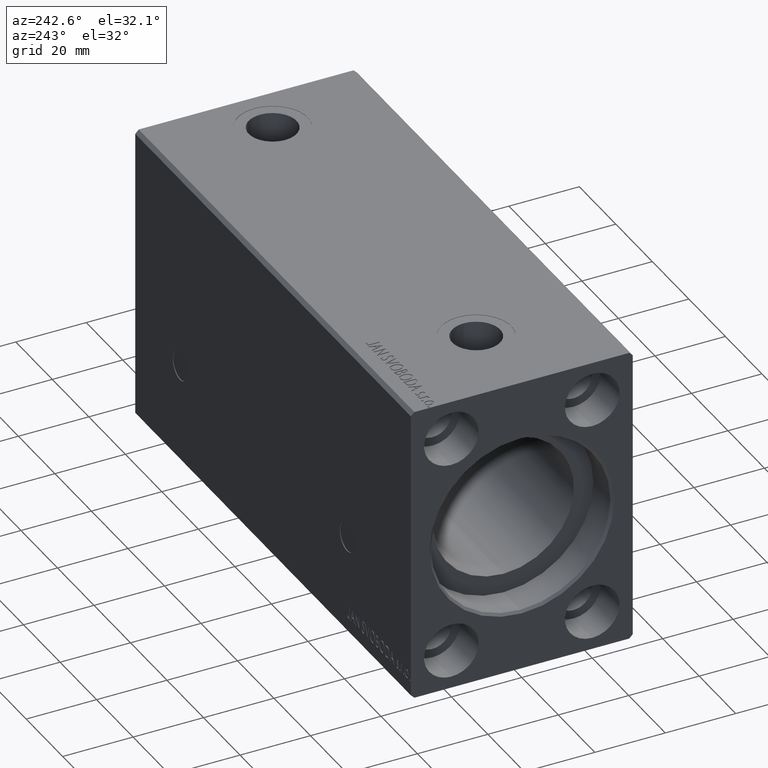
[diagram: clean part render]
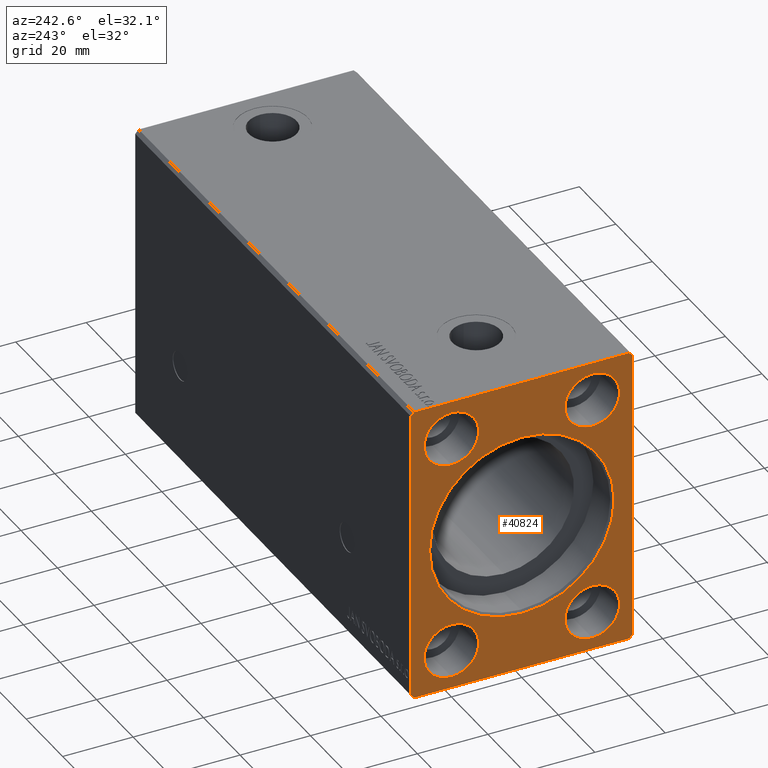
[diagram: same view with one face highlighted and labeled with its STEP entity id]
A machine part, auxiliary view. The second image highlights one B-rep face of the part: STEP entity #40824.
In plain terms, the highlighted planar face has unit normal (1, 0, 0).
Its self-contained STEP definition (entity closure, byte-faithful):
#201 = VECTOR ( 'NONE', #4787, 1000.000000000000114 ) ;
#292 = CARTESIAN_POINT ( 'NONE',  ( 0.000000000000000000, -19.99999999999999645, -31.49999999999998579 ) ) ;
#530 = EDGE_LOOP ( 'NONE', ( #21581, #19204 ) ) ;
#651 = CARTESIAN_POINT ( 'NONE',  ( 0.000000000000000000, -30.50000000000000711, -42.50000000000000711 ) ) ;
#1035 = DIRECTION ( 'NONE',  ( 0.000000000000000000, -0.7071067811865462405, -0.7071067811865489050 ) ) ;
#1129 = CARTESIAN_POINT ( 'NONE',  ( 0.000000000000000000, 31.50000000000001421, -41.50000000000000711 ) ) ;
#1232 = ORIENTED_EDGE ( 'NONE', *, *, #11489, .F. ) ;
#1246 = CARTESIAN_POINT ( 'NONE',  ( 0.000000000000000000, 0.000000000000000000, 0.000000000000000000 ) ) ;
#1449 = CIRCLE ( 'NONE', #17242, 26.20000000000002771 ) ;
#1475 = EDGE_CURVE ( 'NONE', #12869, #28391, #6690, .T. ) ;
#1928 = EDGE_CURVE ( 'NONE', #16351, #22930, #11542, .T. ) ;
#2001 = CARTESIAN_POINT ( 'NONE',  ( 0.000000000000000000, 20.00000000000000355, -23.74999999999998579 ) ) ;
#2054 = VERTEX_POINT ( 'NONE', #9635 ) ;
#2082 = CARTESIAN_POINT ( 'NONE',  ( 0.000000000000000000, -19.99999999999999645, 31.50000000000001421 ) ) ;
#2139 = EDGE_CURVE ( 'NONE', #28348, #18571, #14126, .T. ) ;
#2478 = CARTESIAN_POINT ( 'NONE',  ( 0.000000000000000000, -31.50000000000000000, 41.49999999999999289 ) ) ;
#2539 = VERTEX_POINT ( 'NONE', #31880 ) ;
#2588 = DIRECTION ( 'NONE',  ( 1.000000000000000000, -0.000000000000000000, -0.000000000000000000 ) ) ;
#3066 = AXIS2_PLACEMENT_3D ( 'NONE', #40066, #19871, #30191 ) ;
#3296 = DIRECTION ( 'NONE',  ( 0.000000000000000000, 0.000000000000000000, -1.000000000000000000 ) ) ;
#3444 = FACE_BOUND ( 'NONE', #530, .T. ) ;
#3666 = CARTESIAN_POINT ( 'NONE',  ( 0.000000000000000000, 0.000000000000000000, 0.000000000000000000 ) ) ;
#4095 = EDGE_LOOP ( 'NONE', ( #24348, #1232 ) ) ;
#4638 = EDGE_LOOP ( 'NONE', ( #4786, #38422, #13086, #36055, #9788, #9505, #22966, #20911 ) ) ;
#4786 = ORIENTED_EDGE ( 'NONE', *, *, #26491, .F. ) ;
#4787 = DIRECTION ( 'NONE',  ( 0.000000000000000000, -0.7071067811865474617, 0.7071067811865474617 ) ) ;
#6493 = CIRCLE ( 'NONE', #3066, 26.20000000000002771 ) ;
#6690 = CIRCLE ( 'NONE', #10130, 7.750000000000000000 ) ;
#6758 = CARTESIAN_POINT ( 'NONE',  ( 0.000000000000000000, -31.50000000000000000, -41.50000000000000711 ) ) ;
#6873 = FACE_BOUND ( 'NONE', #9773, .T. ) ;
#7307 = FACE_OUTER_BOUND ( 'NONE', #4638, .T. ) ;
#8218 = AXIS2_PLACEMENT_3D ( 'NONE', #26853, #17173, #30290 ) ;
#8305 = DIRECTION ( 'NONE',  ( 0.000000000000000000, 0.000000000000000000, 1.000000000000000000 ) ) ;
#8547 = AXIS2_PLACEMENT_3D ( 'NONE', #26590, #16488, #10470 ) ;
#8585 = CARTESIAN_POINT ( 'NONE',  ( 0.000000000000000000, 30.50000000000001421, 42.49999999999999289 ) ) ;
#8689 = CARTESIAN_POINT ( 'NONE',  ( 0.000000000000000000, 30.50000000000001776, -42.50000000000000711 ) ) ;
#8734 = DIRECTION ( 'NONE',  ( 0.000000000000000000, 0.000000000000000000, -1.000000000000000000 ) ) ;
#8790 = LINE ( 'NONE', #8585, #41952 ) ;
#8806 = CARTESIAN_POINT ( 'NONE',  ( 0.000000000000000000, -31.50000000000000000, 41.49999999999999289 ) ) ;
#8956 = CARTESIAN_POINT ( 'NONE',  ( 0.000000000000000000, -19.99999999999999645, -39.24999999999998579 ) ) ;
#9182 = CARTESIAN_POINT ( 'NONE',  ( 0.000000000000000000, -30.50000000000000711, -42.50000000000000711 ) ) ;
#9505 = ORIENTED_EDGE ( 'NONE', *, *, #20028, .F. ) ;
#9635 = CARTESIAN_POINT ( 'NONE',  ( 0.000000000000000000, 0.000000000000000000, 26.20000000000002771 ) ) ;
#9773 = EDGE_LOOP ( 'NONE', ( #12752, #41094 ) ) ;
#9788 = ORIENTED_EDGE ( 'NONE', *, *, #19501, .F. ) ;
#10130 = AXIS2_PLACEMENT_3D ( 'NONE', #292, #23266, #3296 ) ;
#10189 = EDGE_CURVE ( 'NONE', #2539, #23730, #30165, .T. ) ;
#10470 = DIRECTION ( 'NONE',  ( 0.000000000000000000, 0.000000000000000000, -1.000000000000000000 ) ) ;
#10474 = VECTOR ( 'NONE', #41359, 999.9999999999998863 ) ;
#10532 = FACE_BOUND ( 'NONE', #4095, .T. ) ;
#10587 = AXIS2_PLACEMENT_3D ( 'NONE', #22774, #2588, #32231 ) ;
#11489 = EDGE_CURVE ( 'NONE', #24608, #31259, #38396, .T. ) ;
#11542 = CIRCLE ( 'NONE', #29395, 7.750000000000000000 ) ;
#11748 = VECTOR ( 'NONE', #19972, 1000.000000000000000 ) ;
#11772 = VECTOR ( 'NONE', #25944, 1000.000000000000000 ) ;
#12110 = ORIENTED_EDGE ( 'NONE', *, *, #1928, .T. ) ;
#12752 = ORIENTED_EDGE ( 'NONE', *, *, #39093, .T. ) ;
#12869 = VERTEX_POINT ( 'NONE', #8956 ) ;
#12904 = CARTESIAN_POINT ( 'NONE',  ( 0.000000000000000000, 31.50000000000001421, 41.49999999999999289 ) ) ;
#12931 = CARTESIAN_POINT ( 'NONE',  ( 0.000000000000000000, -19.99999999999999645, 31.50000000000001421 ) ) ;
#13086 = ORIENTED_EDGE ( 'NONE', *, *, #20302, .F. ) ;
#14126 = LINE ( 'NONE', #20359, #23917 ) ;
#14364 = AXIS2_PLACEMENT_3D ( 'NONE', #12931, #26040, #17835 ) ;
#14838 = CARTESIAN_POINT ( 'NONE',  ( 0.000000000000000000, -19.99999999999999645, -23.74999999999998579 ) ) ;
#14918 = ORIENTED_EDGE ( 'NONE', *, *, #40309, .T. ) ;
#15182 = VECTOR ( 'NONE', #26273, 1000.000000000000000 ) ;
#15870 = EDGE_CURVE ( 'NONE', #23294, #2054, #1449, .T. ) ;
#16132 = DIRECTION ( 'NONE',  ( 1.000000000000000000, 0.000000000000000000, 0.000000000000000000 ) ) ;
#16351 = VERTEX_POINT ( 'NONE', #19834 ) ;
#16488 = DIRECTION ( 'NONE',  ( 1.000000000000000000, -0.000000000000000000, -0.000000000000000000 ) ) ;
#16549 = DIRECTION ( 'NONE',  ( 0.000000000000000000, 0.000000000000000000, -1.000000000000000000 ) ) ;
#16618 = AXIS2_PLACEMENT_3D ( 'NONE', #2082, #18608, #8305 ) ;
#17062 = VERTEX_POINT ( 'NONE', #35736 ) ;
#17173 = DIRECTION ( 'NONE',  ( -1.000000000000000000, 0.000000000000000000, 0.000000000000000000 ) ) ;
#17242 = AXIS2_PLACEMENT_3D ( 'NONE', #1246, #24650, #8734 ) ;
#17668 = VERTEX_POINT ( 'NONE', #8689 ) ;
#17835 = DIRECTION ( 'NONE',  ( 0.000000000000000000, 0.000000000000000000, 1.000000000000000000 ) ) ;
#17959 = EDGE_CURVE ( 'NONE', #24249, #28348, #8790, .T. ) ;
#17978 = VECTOR ( 'NONE', #26325, 1000.000000000000114 ) ;
#18571 = VERTEX_POINT ( 'NONE', #2478 ) ;
#18608 = DIRECTION ( 'NONE',  ( -1.000000000000000000, 0.000000000000000000, 0.000000000000000000 ) ) ;
#18877 = DIRECTION ( 'NONE',  ( 0.000000000000000000, 0.000000000000000000, -1.000000000000000000 ) ) ;
#19204 = ORIENTED_EDGE ( 'NONE', *, *, #10189, .F. ) ;
#19501 = EDGE_CURVE ( 'NONE', #17062, #29292, #39838, .T. ) ;
#19740 = EDGE_CURVE ( 'NONE', #33448, #23172, #20449, .T. ) ;
#19834 = CARTESIAN_POINT ( 'NONE',  ( 0.000000000000000000, 20.00000000000000355, 23.75000000000001421 ) ) ;
#19871 = DIRECTION ( 'NONE',  ( 1.000000000000000000, 0.000000000000000000, 0.000000000000000000 ) ) ;
#19972 = DIRECTION ( 'NONE',  ( 0.000000000000000000, 0.000000000000000000, -1.000000000000000000 ) ) ;
#20028 = EDGE_CURVE ( 'NONE', #18571, #17062, #38237, .T. ) ;
#20302 = EDGE_CURVE ( 'NONE', #17668, #33448, #24822, .T. ) ;
#20359 = CARTESIAN_POINT ( 'NONE',  ( 0.000000000000000000, -30.50000000000000355, 42.49999999999999289 ) ) ;
#20406 = FACE_BOUND ( 'NONE', #36042, .T. ) ;
#20449 = LINE ( 'NONE', #40004, #15182 ) ;
#20911 = ORIENTED_EDGE ( 'NONE', *, *, #17959, .F. ) ;
#21313 = LINE ( 'NONE', #31209, #201 ) ;
#21581 = ORIENTED_EDGE ( 'NONE', *, *, #25168, .F. ) ;
#21888 = CARTESIAN_POINT ( 'NONE',  ( 0.000000000000000000, 20.00000000000000355, 31.50000000000001421 ) ) ;
#22328 = ORIENTED_EDGE ( 'NONE', *, *, #38401, .T. ) ;
#22774 = CARTESIAN_POINT ( 'NONE',  ( 0.000000000000000000, 20.00000000000000355, 31.50000000000001421 ) ) ;
#22785 = CARTESIAN_POINT ( 'NONE',  ( 0.000000000000000000, 20.00000000000000355, -31.49999999999998579 ) ) ;
#22930 = VERTEX_POINT ( 'NONE', #35300 ) ;
#22966 = ORIENTED_EDGE ( 'NONE', *, *, #2139, .F. ) ;
#22996 = CIRCLE ( 'NONE', #41509, 7.750000000000000000 ) ;
#23172 = VERTEX_POINT ( 'NONE', #12904 ) ;
#23266 = DIRECTION ( 'NONE',  ( 1.000000000000000000, -0.000000000000000000, -0.000000000000000000 ) ) ;
#23294 = VERTEX_POINT ( 'NONE', #28339 ) ;
#23730 = VERTEX_POINT ( 'NONE', #33210 ) ;
#23771 = CARTESIAN_POINT ( 'NONE',  ( 0.000000000000000000, 20.00000000000000355, -39.24999999999998579 ) ) ;
#23917 = VECTOR ( 'NONE', #1035, 999.9999999999998863 ) ;
#24249 = VERTEX_POINT ( 'NONE', #42509 ) ;
#24348 = ORIENTED_EDGE ( 'NONE', *, *, #40851, .F. ) ;
#24608 = VERTEX_POINT ( 'NONE', #23771 ) ;
#24650 = DIRECTION ( 'NONE',  ( 1.000000000000000000, 0.000000000000000000, 0.000000000000000000 ) ) ;
#24822 = LINE ( 'NONE', #25450, #10474 ) ;
#25168 = EDGE_CURVE ( 'NONE', #23730, #2539, #29665, .T. ) ;
#25450 = CARTESIAN_POINT ( 'NONE',  ( 0.000000000000000000, 30.50000000000001776, -42.50000000000000711 ) ) ;
#25944 = DIRECTION ( 'NONE',  ( 0.000000000000000000, 1.000000000000000000, 0.000000000000000000 ) ) ;
#26040 = DIRECTION ( 'NONE',  ( -1.000000000000000000, 0.000000000000000000, 0.000000000000000000 ) ) ;
#26273 = DIRECTION ( 'NONE',  ( 0.000000000000000000, 0.000000000000000000, 1.000000000000000000 ) ) ;
#26325 = DIRECTION ( 'NONE',  ( 0.000000000000000000, 0.7071067811865451302, -0.7071067811865500152 ) ) ;
#26491 = EDGE_CURVE ( 'NONE', #23172, #24249, #21313, .T. ) ;
#26590 = CARTESIAN_POINT ( 'NONE',  ( 0.000000000000000000, -19.99999999999999645, -31.49999999999998579 ) ) ;
#26853 = CARTESIAN_POINT ( 'NONE',  ( 0.000000000000000000, 20.00000000000000355, -31.49999999999998579 ) ) ;
#27522 = CARTESIAN_POINT ( 'NONE',  ( 0.000000000000000000, -30.50000000000000355, 42.49999999999999289 ) ) ;
#27670 = ORIENTED_EDGE ( 'NONE', *, *, #15870, .T. ) ;
#28339 = CARTESIAN_POINT ( 'NONE',  ( 0.000000000000000000, 3.208574613766068455E-15, -26.20000000000002771 ) ) ;
#28348 = VERTEX_POINT ( 'NONE', #27522 ) ;
#28391 = VERTEX_POINT ( 'NONE', #14838 ) ;
#28522 = LINE ( 'NONE', #9182, #11772 ) ;
#29292 = VERTEX_POINT ( 'NONE', #651 ) ;
#29395 = AXIS2_PLACEMENT_3D ( 'NONE', #21888, #38212, #18877 ) ;
#29665 = CIRCLE ( 'NONE', #16618, 7.750000000000000000 ) ;
#29814 = CIRCLE ( 'NONE', #8547, 7.750000000000000000 ) ;
#30165 = CIRCLE ( 'NONE', #14364, 7.750000000000000000 ) ;
#30191 = DIRECTION ( 'NONE',  ( 0.000000000000000000, 0.000000000000000000, -1.000000000000000000 ) ) ;
#30290 = DIRECTION ( 'NONE',  ( 0.000000000000000000, 0.000000000000000000, 1.000000000000000000 ) ) ;
#30614 = EDGE_CURVE ( 'NONE', #29292, #17668, #28522, .T. ) ;
#31159 = DIRECTION ( 'NONE',  ( 0.000000000000000000, -1.000000000000000000, 0.000000000000000000 ) ) ;
#31209 = CARTESIAN_POINT ( 'NONE',  ( 0.000000000000000000, 31.50000000000001421, 41.49999999999999289 ) ) ;
#31259 = VERTEX_POINT ( 'NONE', #2001 ) ;
#31880 = CARTESIAN_POINT ( 'NONE',  ( 0.000000000000000000, -19.99999999999999645, 23.75000000000001421 ) ) ;
#32231 = DIRECTION ( 'NONE',  ( 0.000000000000000000, 0.000000000000000000, -1.000000000000000000 ) ) ;
#32605 = AXIS2_PLACEMENT_3D ( 'NONE', #3666, #16132, #16549 ) ;
#32669 = DIRECTION ( 'NONE',  ( 0.000000000000000000, 0.000000000000000000, 1.000000000000000000 ) ) ;
#33210 = CARTESIAN_POINT ( 'NONE',  ( 0.000000000000000000, -19.99999999999999645, 39.25000000000001421 ) ) ;
#33448 = VERTEX_POINT ( 'NONE', #1129 ) ;
#33509 = PLANE ( 'NONE',  #32605 ) ;
#35300 = CARTESIAN_POINT ( 'NONE',  ( 0.000000000000000000, 20.00000000000000355, 39.25000000000001421 ) ) ;
#35736 = CARTESIAN_POINT ( 'NONE',  ( 0.000000000000000000, -31.50000000000000000, -41.50000000000000711 ) ) ;
#35884 = DIRECTION ( 'NONE',  ( -1.000000000000000000, 0.000000000000000000, 0.000000000000000000 ) ) ;
#36042 = EDGE_LOOP ( 'NONE', ( #22328, #12110 ) ) ;
#36055 = ORIENTED_EDGE ( 'NONE', *, *, #30614, .F. ) ;
#36739 = FACE_BOUND ( 'NONE', #37960, .T. ) ;
#37960 = EDGE_LOOP ( 'NONE', ( #14918, #27670 ) ) ;
#38212 = DIRECTION ( 'NONE',  ( 1.000000000000000000, -0.000000000000000000, -0.000000000000000000 ) ) ;
#38237 = LINE ( 'NONE', #8806, #11748 ) ;
#38396 = CIRCLE ( 'NONE', #8218, 7.750000000000000000 ) ;
#38401 = EDGE_CURVE ( 'NONE', #22930, #16351, #39399, .T. ) ;
#38422 = ORIENTED_EDGE ( 'NONE', *, *, #19740, .F. ) ;
#39093 = EDGE_CURVE ( 'NONE', #28391, #12869, #29814, .T. ) ;
#39399 = CIRCLE ( 'NONE', #10587, 7.750000000000000000 ) ;
#39838 = LINE ( 'NONE', #6758, #17978 ) ;
#40004 = CARTESIAN_POINT ( 'NONE',  ( 0.000000000000000000, 31.50000000000001421, -41.50000000000000711 ) ) ;
#40066 = CARTESIAN_POINT ( 'NONE',  ( 0.000000000000000000, 0.000000000000000000, 0.000000000000000000 ) ) ;
#40309 = EDGE_CURVE ( 'NONE', #2054, #23294, #6493, .T. ) ;
#40824 = ADVANCED_FACE ( 'NONE', ( #3444, #10532, #36739, #7307, #6873, #20406 ), #33509, .F. ) ;
#40851 = EDGE_CURVE ( 'NONE', #31259, #24608, #22996, .T. ) ;
#41094 = ORIENTED_EDGE ( 'NONE', *, *, #1475, .T. ) ;
#41359 = DIRECTION ( 'NONE',  ( 0.000000000000000000, 0.7071067811865462405, 0.7071067811865489050 ) ) ;
#41509 = AXIS2_PLACEMENT_3D ( 'NONE', #22785, #35884, #32669 ) ;
#41952 = VECTOR ( 'NONE', #31159, 1000.000000000000000 ) ;
#42509 = CARTESIAN_POINT ( 'NONE',  ( 0.000000000000000000, 30.50000000000001421, 42.49999999999999289 ) ) ;